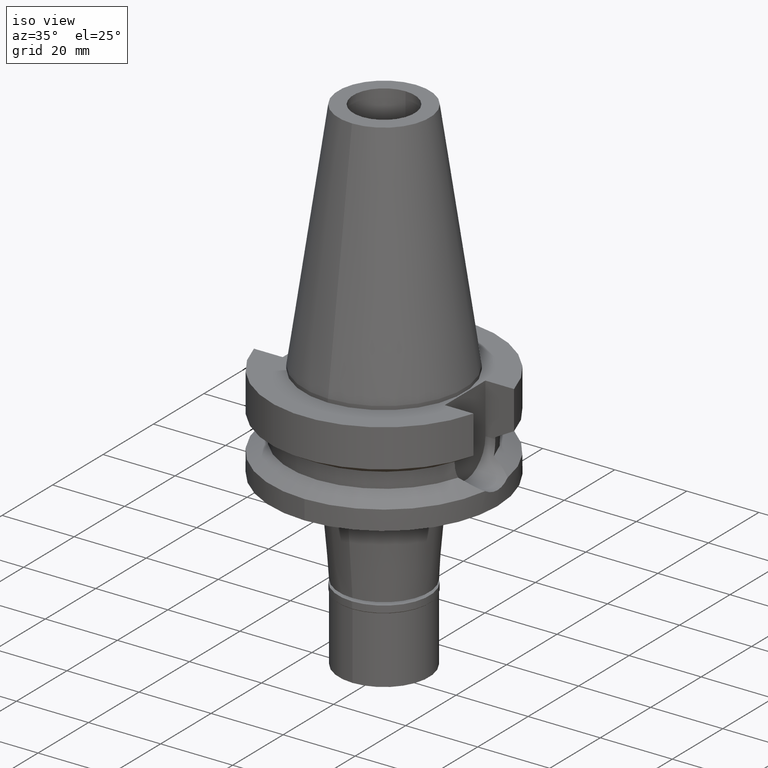
[diagram: clean part render]
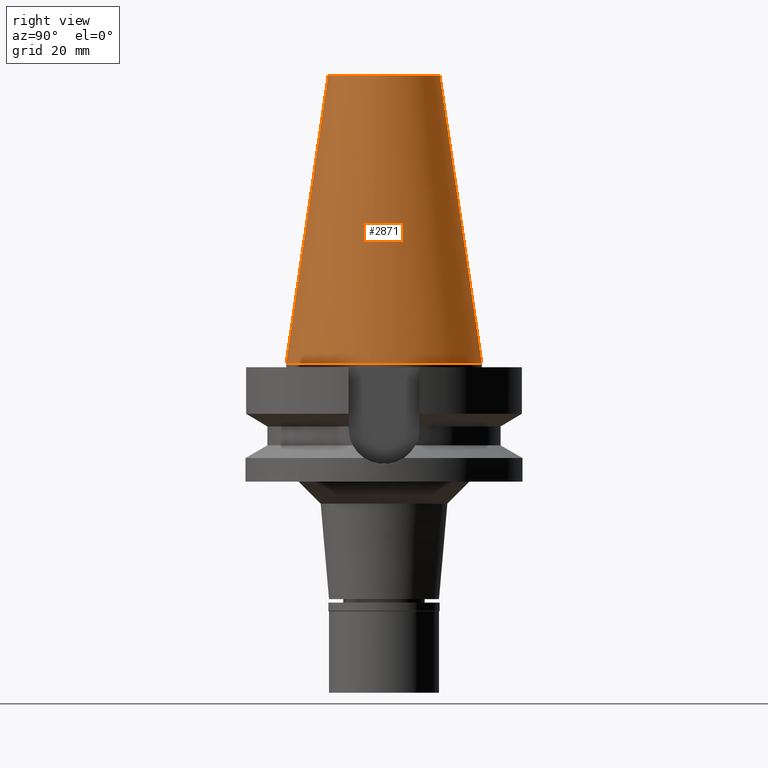
[diagram: tour spotlight — one face highlighted and labeled with its STEP entity id]
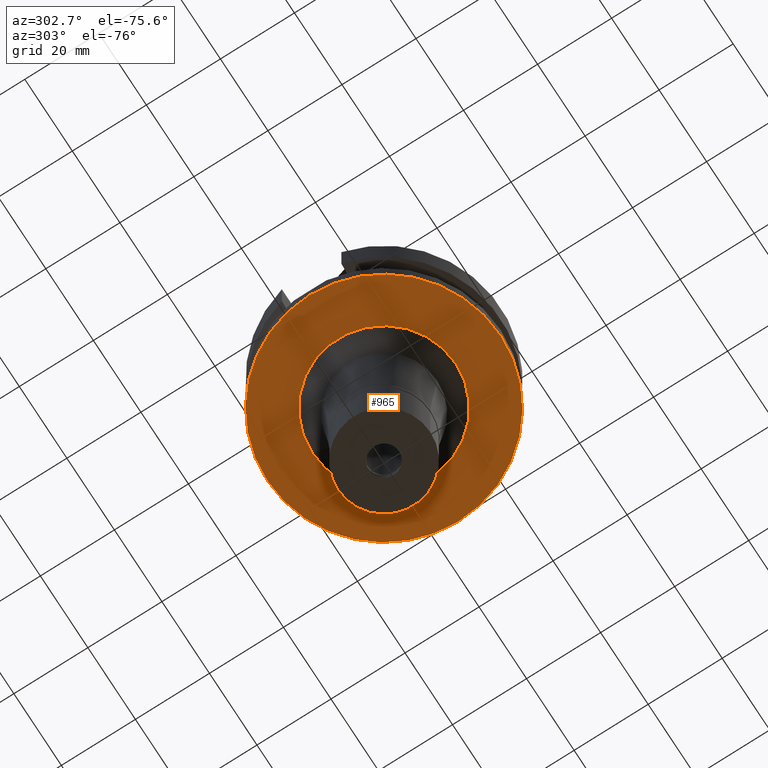
[diagram: tour spotlight — one face highlighted and labeled with its STEP entity id]
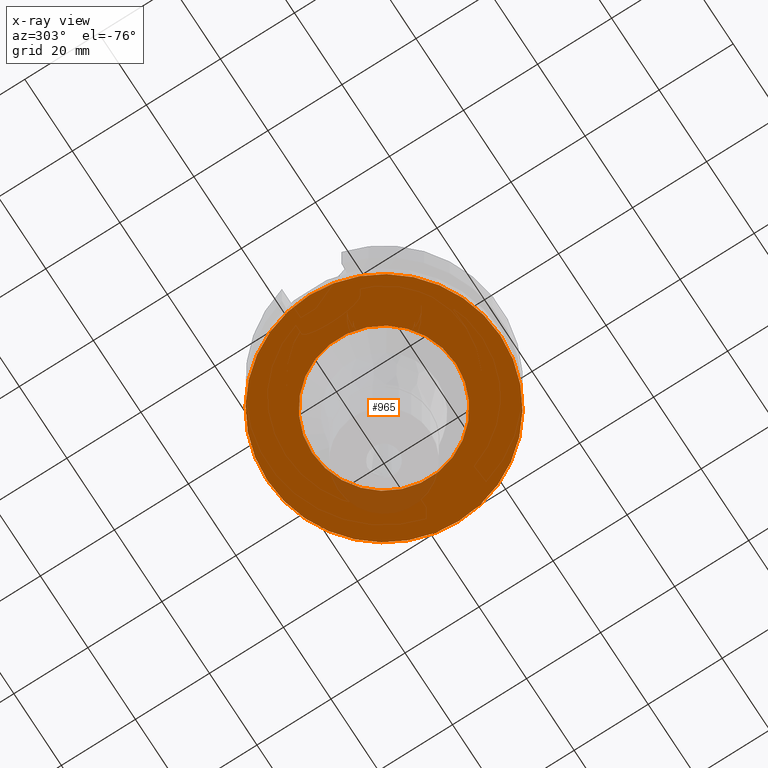
[diagram: x-ray of the same camera — body ghosted, this tour face saturated]
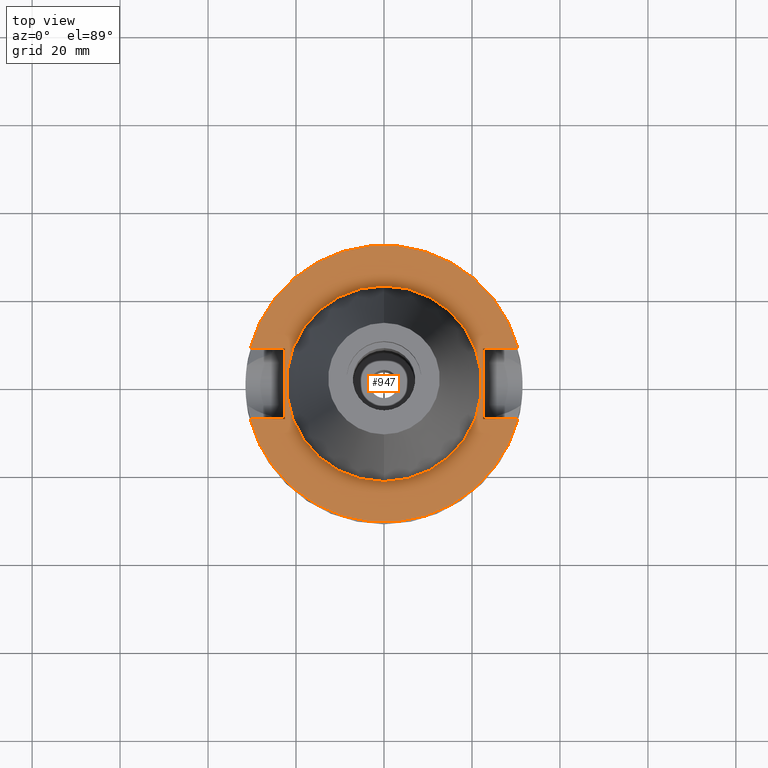
[diagram: tour spotlight — one face highlighted and labeled with its STEP entity id]
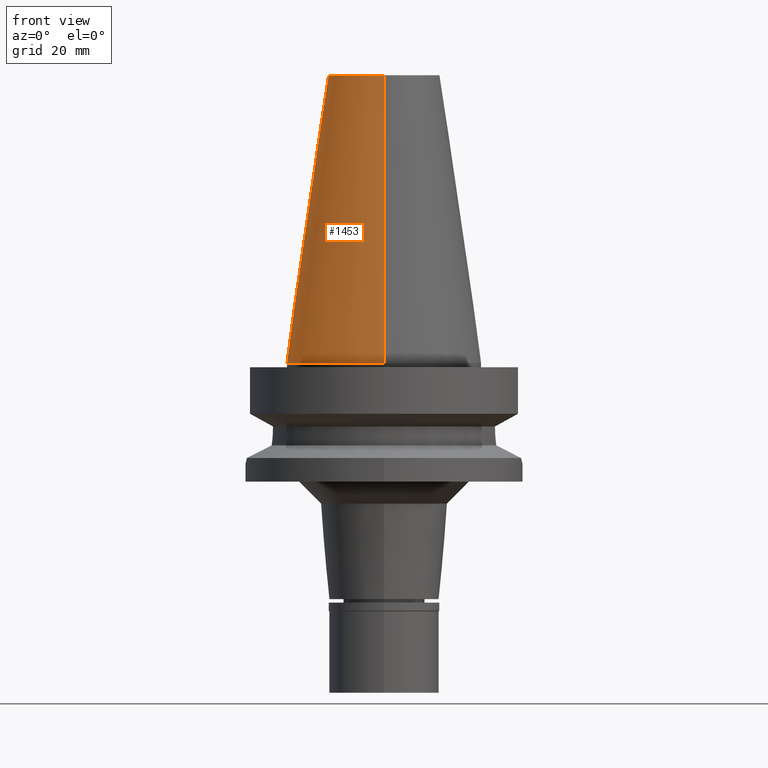
[diagram: tour spotlight — one face highlighted and labeled with its STEP entity id]
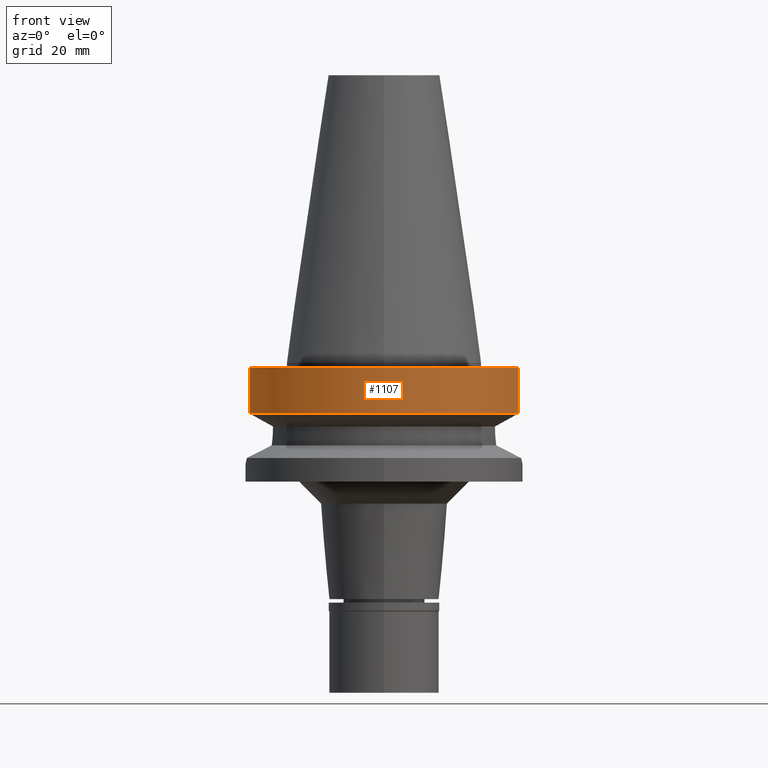
[diagram: tour spotlight — one face highlighted and labeled with its STEP entity id]
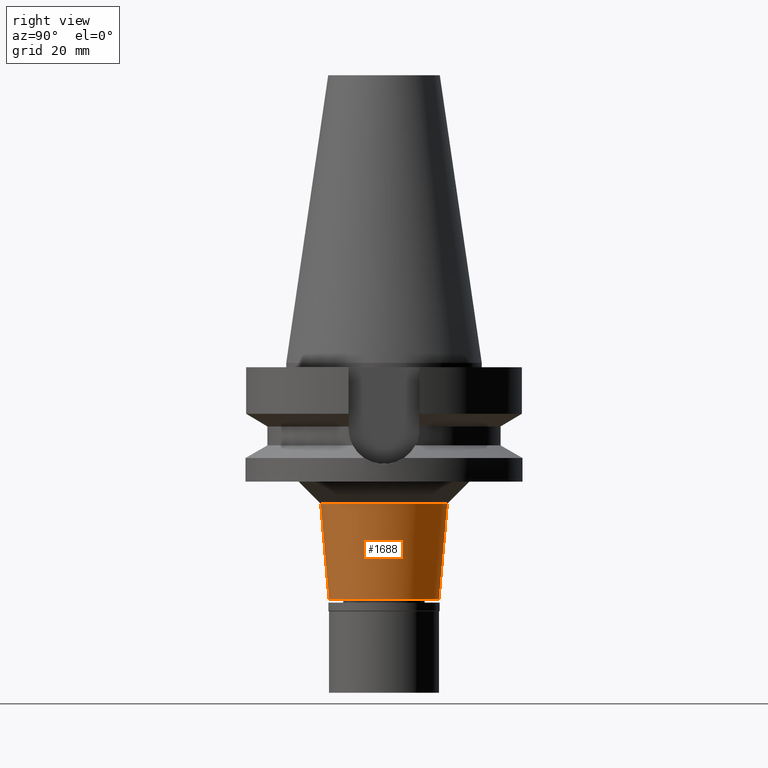
[diagram: tour spotlight — one face highlighted and labeled with its STEP entity id]
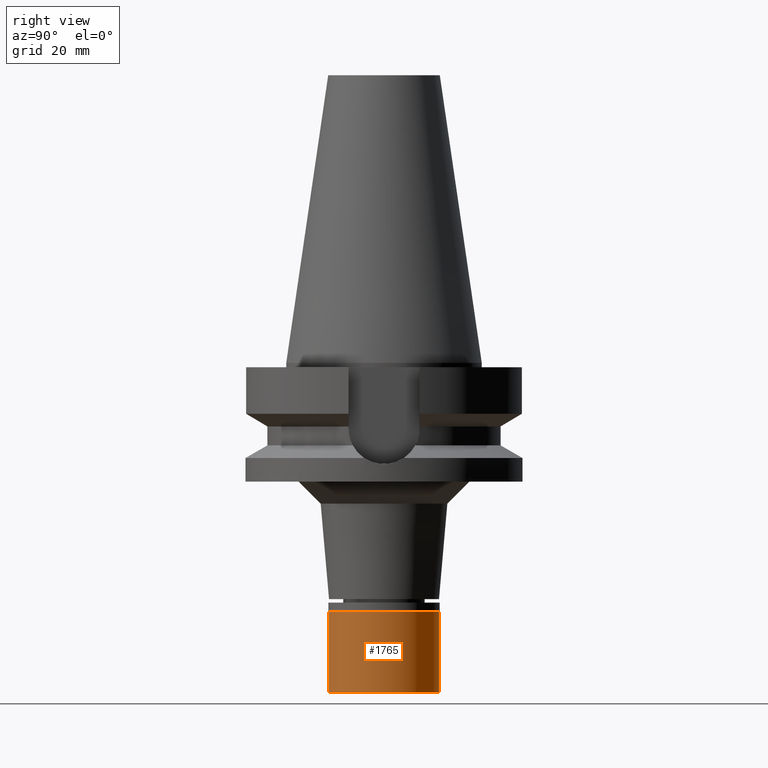
[diagram: tour spotlight — one face highlighted and labeled with its STEP entity id]
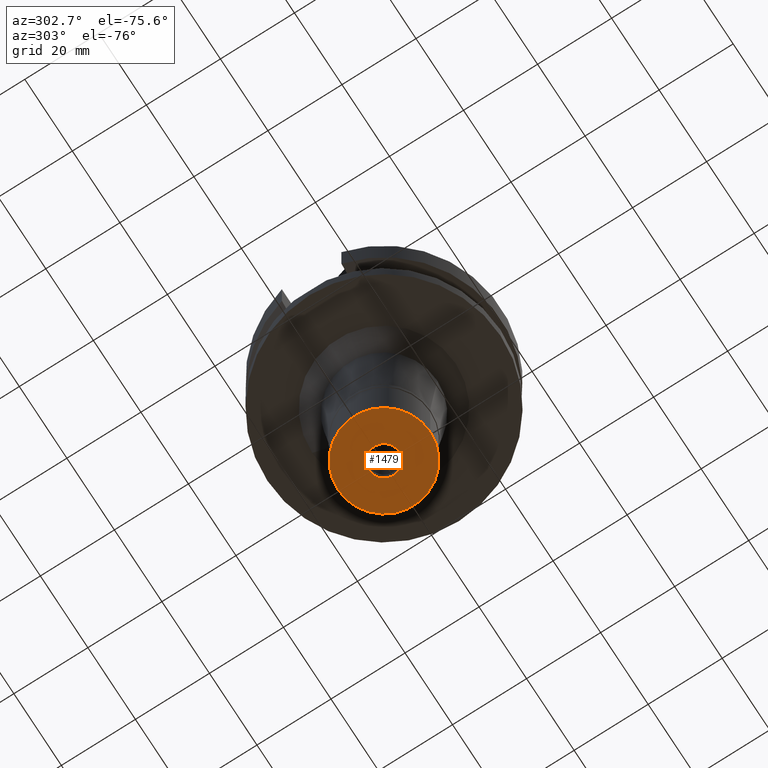
[diagram: tour spotlight — one face highlighted and labeled with its STEP entity id]
A machine part: a face-by-face anatomy tour. The part has 81 B-rep faces; the first image is the clean iso view, then the 8 largest visible faces are spotlighted one at a time (largest first), each with its STEP entity span.

Face 1 — right view, entity #2871. In plain terms, the highlighted conical surface has half-angle 8.297 deg.
Definition (entity closure, byte-faithful):
#51 = CARTESIAN_POINT ( 'NONE',  ( 0.0000000000000000000, -12.68766899429999917, 65.40000000000000568 ) ) ;
#188 = VECTOR ( 'NONE', #1435, 1000.000000000000114 ) ;
#195 = CARTESIAN_POINT ( 'NONE',  ( 0.0000000000000000000, -12.68766899429999917, 65.40000000000000568 ) ) ;
#227 = ORIENTED_EDGE ( 'NONE', *, *, #1899, .F. ) ;
#230 = DIRECTION ( 'NONE',  ( 0.0000000000000000000, -1.000000000000000000, 0.0000000000000000000 ) ) ;
#271 = ORIENTED_EDGE ( 'NONE', *, *, #2396, .F. ) ;
#439 = CIRCLE ( 'NONE', #2180, 22.22500000000000142 ) ;
#513 = LINE ( 'NONE', #1448, #188 ) ;
#527 = VECTOR ( 'NONE', #1674, 1000.000000000000114 ) ;
#541 = CARTESIAN_POINT ( 'NONE',  ( 0.0000000000000000000, 1.625106302469000024E-14, 2.842170943039999687E-14 ) ) ;
#606 = EDGE_CURVE ( 'NONE', #1371, #1858, #824, .T. ) ;
#666 = DIRECTION ( 'NONE',  ( 0.0000000000000000000, 0.0000000000000000000, -1.000000000000000000 ) ) ;
#733 = CIRCLE ( 'NONE', #1031, 12.68766899429999917 ) ;
#780 = VERTEX_POINT ( 'NONE', #2491 ) ;
#824 = LINE ( 'NONE', #195, #527 ) ;
#864 = ORIENTED_EDGE ( 'NONE', *, *, #606, .T. ) ;
#1031 = AXIS2_PLACEMENT_3D ( 'NONE', #1168, #666, #3107 ) ;
#1168 = CARTESIAN_POINT ( 'NONE',  ( 0.0000000000000000000, 1.625106302469000024E-14, 65.40000000000000568 ) ) ;
#1194 = ORIENTED_EDGE ( 'NONE', *, *, #2168, .T. ) ;
#1371 = VERTEX_POINT ( 'NONE', #51 ) ;
#1435 = DIRECTION ( 'NONE',  ( 0.0000000000000000000, 0.1443043893539925626, -0.9895333461855498891 ) ) ;
#1439 = DIRECTION ( 'NONE',  ( 0.0000000000000000000, 0.0000000000000000000, -1.000000000000000000 ) ) ;
#1448 = CARTESIAN_POINT ( 'NONE',  ( 0.0000000000000000000, 12.68766899429999917, 65.40000000000000568 ) ) ;
#1451 = CARTESIAN_POINT ( 'NONE',  ( 0.0000000000000000000, -22.22500000000000142, 8.526512829120999020E-14 ) ) ;
#1650 = FACE_OUTER_BOUND ( 'NONE', #2682, .T. ) ;
#1674 = DIRECTION ( 'NONE',  ( 0.0000000000000000000, -0.1443043893539925626, -0.9895333461855498891 ) ) ;
#1675 = DIRECTION ( 'NONE',  ( 0.0000000000000000000, 1.000000000000000000, 0.0000000000000000000 ) ) ;
#1858 = VERTEX_POINT ( 'NONE', #1451 ) ;
#1899 = EDGE_CURVE ( 'NONE', #2078, #1858, #439, .T. ) ;
#2078 = VERTEX_POINT ( 'NONE', #3017 ) ;
#2168 = EDGE_CURVE ( 'NONE', #780, #1371, #733, .T. ) ;
#2180 = AXIS2_PLACEMENT_3D ( 'NONE', #541, #1439, #1675 ) ;
#2188 = CONICAL_SURFACE ( 'NONE', #2453, 17.45633449714999941, 0.1448099680379422438 ) ;
#2396 = EDGE_CURVE ( 'NONE', #780, #2078, #513, .T. ) ;
#2420 = DIRECTION ( 'NONE',  ( 0.0000000000000000000, 0.0000000000000000000, -1.000000000000000000 ) ) ;
#2453 = AXIS2_PLACEMENT_3D ( 'NONE', #2633, #2420, #230 ) ;
#2491 = CARTESIAN_POINT ( 'NONE',  ( 0.0000000000000000000, 12.68766899429999917, 65.40000000000000568 ) ) ;
#2633 = CARTESIAN_POINT ( 'NONE',  ( 0.0000000000000000000, 1.625106302469000024E-14, 32.70000000000000284 ) ) ;
#2682 = EDGE_LOOP ( 'NONE', ( #1194, #864, #227, #271 ) ) ;
#2871 = ADVANCED_FACE ( 'NONE', ( #1650 ), #2188, .T. ) ;
#3017 = CARTESIAN_POINT ( 'NONE',  ( 0.0000000000000000000, 22.22500000000000142, 8.526512829120999020E-14 ) ) ;
#3107 = DIRECTION ( 'NONE',  ( 0.0000000000000000000, 1.000000000000000000, 0.0000000000000000000 ) ) ;

Face 2 — auxiliary view, entity #965. An x-ray twin of the same camera follows (body ghosted, this face saturated) — the face is partly hidden behind the body. In plain terms, the highlighted planar face has unit normal (0, 0, -1).
Definition (entity closure, byte-faithful):
#66 = EDGE_CURVE ( 'NONE', #664, #2153, #2385, .T. ) ;
#191 = FACE_BOUND ( 'NONE', #1846, .T. ) ;
#212 = DIRECTION ( 'NONE',  ( 0.0000000000000000000, -1.000000000000000000, 0.0000000000000000000 ) ) ;
#312 = DIRECTION ( 'NONE',  ( 0.0000000000000000000, 0.0000000000000000000, 1.000000000000000000 ) ) ;
#357 = EDGE_LOOP ( 'NONE', ( #3084, #533 ) ) ;
#418 = EDGE_CURVE ( 'NONE', #2153, #664, #1574, .T. ) ;
#437 = AXIS2_PLACEMENT_3D ( 'NONE', #1417, #941, #1391 ) ;
#456 = CARTESIAN_POINT ( 'NONE',  ( 0.0000000000000000000, 0.0000000000000000000, -27.00000000000000000 ) ) ;
#533 = ORIENTED_EDGE ( 'NONE', *, *, #757, .F. ) ;
#654 = CARTESIAN_POINT ( 'NONE',  ( 0.0000000000000000000, 19.39850399851000162, -27.00000000000000000 ) ) ;
#664 = VERTEX_POINT ( 'NONE', #928 ) ;
#687 = VERTEX_POINT ( 'NONE', #1185 ) ;
#751 = DIRECTION ( 'NONE',  ( 0.0000000000000000000, -1.000000000000000000, 0.0000000000000000000 ) ) ;
#757 = EDGE_CURVE ( 'NONE', #1876, #687, #886, .T. ) ;
#823 = CARTESIAN_POINT ( 'NONE',  ( 0.0000000000000000000, 0.0000000000000000000, -27.00000000000000000 ) ) ;
#886 = CIRCLE ( 'NONE', #3068, 31.50000000000000000 ) ;
#928 = CARTESIAN_POINT ( 'NONE',  ( 0.0000000000000000000, -19.39850399851000162, -27.00000000000000000 ) ) ;
#941 = DIRECTION ( 'NONE',  ( 0.0000000000000000000, 0.0000000000000000000, -1.000000000000000000 ) ) ;
#952 = CARTESIAN_POINT ( 'NONE',  ( 0.0000000000000000000, 2.107739606012999995E-14, -27.00000000000000000 ) ) ;
#965 = ADVANCED_FACE ( 'NONE', ( #1847, #191 ), #2864, .T. ) ;
#1070 = DIRECTION ( 'NONE',  ( 0.0000000000000000000, 1.000000000000000000, 0.0000000000000000000 ) ) ;
#1185 = CARTESIAN_POINT ( 'NONE',  ( 0.0000000000000000000, 31.50000000000000000, -27.00000000000000000 ) ) ;
#1391 = DIRECTION ( 'NONE',  ( 0.0000000000000000000, -1.000000000000000000, 0.0000000000000000000 ) ) ;
#1400 = DIRECTION ( 'NONE',  ( 0.0000000000000000000, 0.0000000000000000000, 1.000000000000000000 ) ) ;
#1417 = CARTESIAN_POINT ( 'NONE',  ( 0.0000000000000000000, 0.0000000000000000000, -27.00000000000000000 ) ) ;
#1537 = ORIENTED_EDGE ( 'NONE', *, *, #66, .F. ) ;
#1574 = CIRCLE ( 'NONE', #2852, 19.39850399851000162 ) ;
#1662 = DIRECTION ( 'NONE',  ( 0.0000000000000000000, 1.000000000000000000, 0.0000000000000000000 ) ) ;
#1818 = DIRECTION ( 'NONE',  ( 0.0000000000000000000, 0.0000000000000000000, -1.000000000000000000 ) ) ;
#1846 = EDGE_LOOP ( 'NONE', ( #2803, #1537 ) ) ;
#1847 = FACE_OUTER_BOUND ( 'NONE', #357, .T. ) ;
#1876 = VERTEX_POINT ( 'NONE', #2896 ) ;
#2040 = AXIS2_PLACEMENT_3D ( 'NONE', #952, #1400, #1662 ) ;
#2151 = DIRECTION ( 'NONE',  ( 0.0000000000000000000, 0.0000000000000000000, -1.000000000000000000 ) ) ;
#2153 = VERTEX_POINT ( 'NONE', #654 ) ;
#2385 = CIRCLE ( 'NONE', #3114, 19.39850399851000162 ) ;
#2803 = ORIENTED_EDGE ( 'NONE', *, *, #418, .F. ) ;
#2815 = EDGE_CURVE ( 'NONE', #687, #1876, #2917, .T. ) ;
#2852 = AXIS2_PLACEMENT_3D ( 'NONE', #823, #1818, #1070 ) ;
#2864 = PLANE ( 'NONE',  #437 ) ;
#2896 = CARTESIAN_POINT ( 'NONE',  ( 0.0000000000000000000, -31.50000000000000000, -27.00000000000000000 ) ) ;
#2917 = CIRCLE ( 'NONE', #2040, 31.50000000000000000 ) ;
#2927 = CARTESIAN_POINT ( 'NONE',  ( 0.0000000000000000000, 2.107739606012999995E-14, -27.00000000000000000 ) ) ;
#3068 = AXIS2_PLACEMENT_3D ( 'NONE', #2927, #312, #751 ) ;
#3084 = ORIENTED_EDGE ( 'NONE', *, *, #2815, .F. ) ;
#3114 = AXIS2_PLACEMENT_3D ( 'NONE', #456, #2151, #212 ) ;

Face 3 — top view, entity #947. In plain terms, the highlighted planar face has unit normal (0, 0, -1).
Definition (entity closure, byte-faithful):
#2 = EDGE_CURVE ( 'NONE', #1684, #2535, #2808, .T. ) ;
#23 = ORIENTED_EDGE ( 'NONE', *, *, #2336, .F. ) ;
#30 = CARTESIAN_POINT ( 'NONE',  ( 22.50000000000000000, -8.050000000000000711, -1.000000000000000000 ) ) ;
#52 = CARTESIAN_POINT ( 'NONE',  ( -22.50000000000000000, 8.050000000000000711, -1.000000000000000000 ) ) ;
#102 = CARTESIAN_POINT ( 'NONE',  ( -22.50000000000000000, -8.050000000000000711, -1.000000000000000000 ) ) ;
#124 = CARTESIAN_POINT ( 'NONE',  ( -30.45402272279000044, -8.050000000000000711, -1.000000000000000000 ) ) ;
#193 = DIRECTION ( 'NONE',  ( 1.000000000000000000, 3.573249715389999860E-14, 0.0000000000000000000 ) ) ;
#205 = ORIENTED_EDGE ( 'NONE', *, *, #1498, .F. ) ;
#206 = FACE_OUTER_BOUND ( 'NONE', #1370, .T. ) ;
#310 = EDGE_CURVE ( 'NONE', #2843, #3077, #2934, .T. ) ;
#363 = LINE ( 'NONE', #819, #2557 ) ;
#401 = EDGE_CURVE ( 'NONE', #1390, #1652, #2550, .T. ) ;
#460 = PLANE ( 'NONE',  #830 ) ;
#489 = CARTESIAN_POINT ( 'NONE',  ( 0.0000000000000000000, 1.212400331155999925E-14, -1.000000000000000000 ) ) ;
#501 = CARTESIAN_POINT ( 'NONE',  ( 0.0000000000000000000, 2.107739606012999995E-14, -1.000000000000000000 ) ) ;
#562 = ORIENTED_EDGE ( 'NONE', *, *, #310, .F. ) ;
#574 = DIRECTION ( 'NONE',  ( -1.000000000000000000, -3.550916904668000126E-14, 0.0000000000000000000 ) ) ;
#593 = VECTOR ( 'NONE', #1639, 1000.000000000000000 ) ;
#644 = ORIENTED_EDGE ( 'NONE', *, *, #2972, .T. ) ;
#676 = FACE_BOUND ( 'NONE', #1585, .T. ) ;
#689 = DIRECTION ( 'NONE',  ( 0.0000000000000000000, -1.000000000000000000, 0.0000000000000000000 ) ) ;
#729 = VECTOR ( 'NONE', #2761, 1000.000000000000000 ) ;
#752 = DIRECTION ( 'NONE',  ( 0.0000000000000000000, 0.0000000000000000000, -1.000000000000000000 ) ) ;
#797 = EDGE_CURVE ( 'NONE', #2535, #1684, #1472, .T. ) ;
#798 = ORIENTED_EDGE ( 'NONE', *, *, #797, .F. ) ;
#819 = CARTESIAN_POINT ( 'NONE',  ( 22.50000000000000000, 8.050000000000000711, -1.000000000000000000 ) ) ;
#825 = CARTESIAN_POINT ( 'NONE',  ( -30.45402272279000044, 8.050000000000000711, -1.000000000000000000 ) ) ;
#830 = AXIS2_PLACEMENT_3D ( 'NONE', #489, #2637, #689 ) ;
#847 = ORIENTED_EDGE ( 'NONE', *, *, #401, .T. ) ;
#904 = LINE ( 'NONE', #1849, #3023 ) ;
#919 = CARTESIAN_POINT ( 'NONE',  ( -22.50000000000000000, -8.050000000000000711, -1.000000000000000000 ) ) ;
#947 = ADVANCED_FACE ( 'NONE', ( #206, #676 ), #460, .F. ) ;
#1078 = CARTESIAN_POINT ( 'NONE',  ( 0.0000000000000000000, 22.22500000000000142, -1.000000000000000000 ) ) ;
#1087 = CIRCLE ( 'NONE', #2863, 31.50000000000000000 ) ;
#1191 = CARTESIAN_POINT ( 'NONE',  ( -22.50000000000000000, 8.050000000000000711, -1.000000000000000000 ) ) ;
#1219 = DIRECTION ( 'NONE',  ( 0.0000000000000000000, 0.0000000000000000000, -1.000000000000000000 ) ) ;
#1249 = CARTESIAN_POINT ( 'NONE',  ( 30.45402272279000044, 8.050000000000000711, -1.000000000000000000 ) ) ;
#1270 = AXIS2_PLACEMENT_3D ( 'NONE', #1333, #2545, #1312 ) ;
#1310 = ORIENTED_EDGE ( 'NONE', *, *, #1999, .F. ) ;
#1312 = DIRECTION ( 'NONE',  ( 0.0000000000000000000, 1.000000000000000000, 0.0000000000000000000 ) ) ;
#1322 = DIRECTION ( 'NONE',  ( 0.0000000000000000000, -1.000000000000000000, 0.0000000000000000000 ) ) ;
#1333 = CARTESIAN_POINT ( 'NONE',  ( 0.0000000000000000000, 2.107739606012999995E-14, -1.000000000000000000 ) ) ;
#1370 = EDGE_LOOP ( 'NONE', ( #644, #2322, #2124, #1310, #847, #23, #562, #205 ) ) ;
#1390 = VERTEX_POINT ( 'NONE', #1557 ) ;
#1472 = CIRCLE ( 'NONE', #1270, 22.22500000000000142 ) ;
#1483 = AXIS2_PLACEMENT_3D ( 'NONE', #501, #1219, #1894 ) ;
#1498 = EDGE_CURVE ( 'NONE', #1780, #2843, #2233, .T. ) ;
#1557 = CARTESIAN_POINT ( 'NONE',  ( 22.50000000000000000, 8.050000000000000711, -1.000000000000000000 ) ) ;
#1585 = EDGE_LOOP ( 'NONE', ( #798, #1774 ) ) ;
#1639 = DIRECTION ( 'NONE',  ( -1.000000000000000000, 3.550916904668000126E-14, 0.0000000000000000000 ) ) ;
#1652 = VERTEX_POINT ( 'NONE', #1249 ) ;
#1684 = VERTEX_POINT ( 'NONE', #2687 ) ;
#1696 = VERTEX_POINT ( 'NONE', #124 ) ;
#1720 = CARTESIAN_POINT ( 'NONE',  ( -22.50000000000000000, -8.050000000000000711, -1.000000000000000000 ) ) ;
#1738 = DIRECTION ( 'NONE',  ( 0.0000000000000000000, -1.000000000000000000, 0.0000000000000000000 ) ) ;
#1774 = ORIENTED_EDGE ( 'NONE', *, *, #2, .F. ) ;
#1780 = VERTEX_POINT ( 'NONE', #1720 ) ;
#1849 = CARTESIAN_POINT ( 'NONE',  ( 22.50000000000000000, -8.050000000000000711, -1.000000000000000000 ) ) ;
#1868 = VERTEX_POINT ( 'NONE', #30 ) ;
#1894 = DIRECTION ( 'NONE',  ( 0.0000000000000000000, 1.000000000000000000, 0.0000000000000000000 ) ) ;
#1902 = EDGE_CURVE ( 'NONE', #2906, #1696, #1087, .T. ) ;
#1922 = VECTOR ( 'NONE', #574, 1000.000000000000000 ) ;
#1944 = CARTESIAN_POINT ( 'NONE',  ( 0.0000000000000000000, 2.107739606012999995E-14, -1.000000000000000000 ) ) ;
#1999 = EDGE_CURVE ( 'NONE', #1390, #1868, #363, .T. ) ;
#2023 = VECTOR ( 'NONE', #2310, 1000.000000000000000 ) ;
#2124 = ORIENTED_EDGE ( 'NONE', *, *, #2148, .F. ) ;
#2148 = EDGE_CURVE ( 'NONE', #1868, #2906, #904, .T. ) ;
#2233 = LINE ( 'NONE', #102, #729 ) ;
#2310 = DIRECTION ( 'NONE',  ( 1.000000000000000000, -3.506251283225999947E-14, 0.0000000000000000000 ) ) ;
#2322 = ORIENTED_EDGE ( 'NONE', *, *, #1902, .F. ) ;
#2336 = EDGE_CURVE ( 'NONE', #3077, #1652, #2865, .T. ) ;
#2535 = VERTEX_POINT ( 'NONE', #1078 ) ;
#2545 = DIRECTION ( 'NONE',  ( 0.0000000000000000000, 0.0000000000000000000, 1.000000000000000000 ) ) ;
#2550 = LINE ( 'NONE', #2792, #2023 ) ;
#2557 = VECTOR ( 'NONE', #1738, 1000.000000000000000 ) ;
#2623 = CARTESIAN_POINT ( 'NONE',  ( 30.45402272279000044, -8.050000000000000711, -1.000000000000000000 ) ) ;
#2637 = DIRECTION ( 'NONE',  ( 0.0000000000000000000, 0.0000000000000000000, -1.000000000000000000 ) ) ;
#2646 = AXIS2_PLACEMENT_3D ( 'NONE', #3026, #2766, #1322 ) ;
#2687 = CARTESIAN_POINT ( 'NONE',  ( 0.0000000000000000000, -22.22500000000000142, -1.000000000000000000 ) ) ;
#2761 = DIRECTION ( 'NONE',  ( 0.0000000000000000000, 1.000000000000000000, 0.0000000000000000000 ) ) ;
#2766 = DIRECTION ( 'NONE',  ( 0.0000000000000000000, 0.0000000000000000000, 1.000000000000000000 ) ) ;
#2792 = CARTESIAN_POINT ( 'NONE',  ( 22.50000000000000000, 8.050000000000000711, -1.000000000000000000 ) ) ;
#2808 = CIRCLE ( 'NONE', #2646, 22.22500000000000142 ) ;
#2843 = VERTEX_POINT ( 'NONE', #1191 ) ;
#2863 = AXIS2_PLACEMENT_3D ( 'NONE', #1944, #752, #2882 ) ;
#2865 = CIRCLE ( 'NONE', #1483, 31.50000000000000000 ) ;
#2882 = DIRECTION ( 'NONE',  ( 0.0000000000000000000, -1.000000000000000000, 0.0000000000000000000 ) ) ;
#2906 = VERTEX_POINT ( 'NONE', #2623 ) ;
#2934 = LINE ( 'NONE', #52, #1922 ) ;
#2972 = EDGE_CURVE ( 'NONE', #1780, #1696, #3100, .T. ) ;
#3023 = VECTOR ( 'NONE', #193, 1000.000000000000000 ) ;
#3026 = CARTESIAN_POINT ( 'NONE',  ( 0.0000000000000000000, 2.107739606012999995E-14, -1.000000000000000000 ) ) ;
#3077 = VERTEX_POINT ( 'NONE', #825 ) ;
#3100 = LINE ( 'NONE', #919, #593 ) ;

Face 4 — front view, entity #1453. In plain terms, the highlighted conical surface has half-angle 8.297 deg.
Definition (entity closure, byte-faithful):
#51 = CARTESIAN_POINT ( 'NONE',  ( 0.0000000000000000000, -12.68766899429999917, 65.40000000000000568 ) ) ;
#188 = VECTOR ( 'NONE', #1435, 1000.000000000000114 ) ;
#195 = CARTESIAN_POINT ( 'NONE',  ( 0.0000000000000000000, -12.68766899429999917, 65.40000000000000568 ) ) ;
#266 = AXIS2_PLACEMENT_3D ( 'NONE', #2678, #1269, #2198 ) ;
#291 = EDGE_CURVE ( 'NONE', #1858, #2078, #1133, .T. ) ;
#300 = DIRECTION ( 'NONE',  ( 0.0000000000000000000, -1.000000000000000000, 0.0000000000000000000 ) ) ;
#370 = ORIENTED_EDGE ( 'NONE', *, *, #291, .F. ) ;
#392 = EDGE_CURVE ( 'NONE', #1371, #780, #477, .T. ) ;
#477 = CIRCLE ( 'NONE', #266, 12.68766899429999917 ) ;
#509 = DIRECTION ( 'NONE',  ( 0.0000000000000000000, 0.0000000000000000000, -1.000000000000000000 ) ) ;
#513 = LINE ( 'NONE', #1448, #188 ) ;
#527 = VECTOR ( 'NONE', #1674, 1000.000000000000114 ) ;
#606 = EDGE_CURVE ( 'NONE', #1371, #1858, #824, .T. ) ;
#780 = VERTEX_POINT ( 'NONE', #2491 ) ;
#803 = ORIENTED_EDGE ( 'NONE', *, *, #606, .F. ) ;
#824 = LINE ( 'NONE', #195, #527 ) ;
#932 = AXIS2_PLACEMENT_3D ( 'NONE', #2970, #2009, #300 ) ;
#992 = CARTESIAN_POINT ( 'NONE',  ( 0.0000000000000000000, 1.625106302469000024E-14, 2.842170943039999687E-14 ) ) ;
#1004 = FACE_OUTER_BOUND ( 'NONE', #2572, .T. ) ;
#1021 = DIRECTION ( 'NONE',  ( 0.0000000000000000000, -1.000000000000000000, 0.0000000000000000000 ) ) ;
#1133 = CIRCLE ( 'NONE', #1670, 22.22500000000000142 ) ;
#1231 = ORIENTED_EDGE ( 'NONE', *, *, #2396, .T. ) ;
#1269 = DIRECTION ( 'NONE',  ( 0.0000000000000000000, 0.0000000000000000000, -1.000000000000000000 ) ) ;
#1371 = VERTEX_POINT ( 'NONE', #51 ) ;
#1435 = DIRECTION ( 'NONE',  ( 0.0000000000000000000, 0.1443043893539925626, -0.9895333461855498891 ) ) ;
#1448 = CARTESIAN_POINT ( 'NONE',  ( 0.0000000000000000000, 12.68766899429999917, 65.40000000000000568 ) ) ;
#1451 = CARTESIAN_POINT ( 'NONE',  ( 0.0000000000000000000, -22.22500000000000142, 8.526512829120999020E-14 ) ) ;
#1453 = ADVANCED_FACE ( 'NONE', ( #1004 ), #2344, .T. ) ;
#1670 = AXIS2_PLACEMENT_3D ( 'NONE', #992, #509, #1021 ) ;
#1674 = DIRECTION ( 'NONE',  ( 0.0000000000000000000, -0.1443043893539925626, -0.9895333461855498891 ) ) ;
#1858 = VERTEX_POINT ( 'NONE', #1451 ) ;
#2009 = DIRECTION ( 'NONE',  ( 0.0000000000000000000, 0.0000000000000000000, -1.000000000000000000 ) ) ;
#2078 = VERTEX_POINT ( 'NONE', #3017 ) ;
#2198 = DIRECTION ( 'NONE',  ( 0.0000000000000000000, -1.000000000000000000, 0.0000000000000000000 ) ) ;
#2255 = ORIENTED_EDGE ( 'NONE', *, *, #392, .T. ) ;
#2344 = CONICAL_SURFACE ( 'NONE', #932, 17.45633449714999941, 0.1448099680379422438 ) ;
#2396 = EDGE_CURVE ( 'NONE', #780, #2078, #513, .T. ) ;
#2491 = CARTESIAN_POINT ( 'NONE',  ( 0.0000000000000000000, 12.68766899429999917, 65.40000000000000568 ) ) ;
#2572 = EDGE_LOOP ( 'NONE', ( #370, #803, #2255, #1231 ) ) ;
#2678 = CARTESIAN_POINT ( 'NONE',  ( 0.0000000000000000000, 1.625106302469000024E-14, 65.40000000000000568 ) ) ;
#2970 = CARTESIAN_POINT ( 'NONE',  ( 0.0000000000000000000, 1.625106302469000024E-14, 32.70000000000000284 ) ) ;
#3017 = CARTESIAN_POINT ( 'NONE',  ( 0.0000000000000000000, 22.22500000000000142, 8.526512829120999020E-14 ) ) ;

Face 5 — front view, entity #1107. In plain terms, the highlighted cylindrical surface (partial cylindrical patch) has radius 31.5 mm, axis along (0, 0, -1).
Definition (entity closure, byte-faithful):
#124 = CARTESIAN_POINT ( 'NONE',  ( -30.45402272279000044, -8.050000000000000711, -1.000000000000000000 ) ) ;
#169 = LINE ( 'NONE', #1100, #1782 ) ;
#214 = CARTESIAN_POINT ( 'NONE',  ( 0.0000000000000000000, 2.107739606012999995E-14, 72.10999999999999943 ) ) ;
#645 = VERTEX_POINT ( 'NONE', #739 ) ;
#739 = CARTESIAN_POINT ( 'NONE',  ( 30.45402272279000044, -8.049999999999000622, -11.56550565266999975 ) ) ;
#752 = DIRECTION ( 'NONE',  ( 0.0000000000000000000, 0.0000000000000000000, -1.000000000000000000 ) ) ;
#835 = AXIS2_PLACEMENT_3D ( 'NONE', #214, #1151, #2860 ) ;
#1063 = ORIENTED_EDGE ( 'NONE', *, *, #1902, .T. ) ;
#1087 = CIRCLE ( 'NONE', #2863, 31.50000000000000000 ) ;
#1093 = CARTESIAN_POINT ( 'NONE',  ( -30.45402291521000038, -8.049999272052000165, -11.56551220913999956 ) ) ;
#1100 = CARTESIAN_POINT ( 'NONE',  ( -30.45402291521000038, -8.049999272052000165, -11.56551220913999956 ) ) ;
#1107 = ADVANCED_FACE ( 'NONE', ( #1369 ), #2634, .T. ) ;
#1151 = DIRECTION ( 'NONE',  ( 0.0000000000000000000, 0.0000000000000000000, -1.000000000000000000 ) ) ;
#1174 = CARTESIAN_POINT ( 'NONE',  ( 0.0000000000000000000, 1.065333950388000029E-14, -11.56550565266999975 ) ) ;
#1250 = CARTESIAN_POINT ( 'NONE',  ( 30.45402272279000044, -8.050000000000000711, -1.000000000000000000 ) ) ;
#1285 = CIRCLE ( 'NONE', #1638, 31.50000000000000000 ) ;
#1292 = ORIENTED_EDGE ( 'NONE', *, *, #1454, .F. ) ;
#1369 = FACE_OUTER_BOUND ( 'NONE', #2291, .T. ) ;
#1454 = EDGE_CURVE ( 'NONE', #2906, #645, #2250, .T. ) ;
#1458 = DIRECTION ( 'NONE',  ( 0.0000000000000000000, -1.000000000000000000, 0.0000000000000000000 ) ) ;
#1532 = VERTEX_POINT ( 'NONE', #1093 ) ;
#1567 = ORIENTED_EDGE ( 'NONE', *, *, #2735, .F. ) ;
#1638 = AXIS2_PLACEMENT_3D ( 'NONE', #1174, #2122, #1458 ) ;
#1696 = VERTEX_POINT ( 'NONE', #124 ) ;
#1782 = VECTOR ( 'NONE', #1856, 1000.000000000000227 ) ;
#1856 = DIRECTION ( 'NONE',  ( 1.821207597955990282E-08, -6.889849435559961622E-08, 0.9999999999999973355 ) ) ;
#1902 = EDGE_CURVE ( 'NONE', #2906, #1696, #1087, .T. ) ;
#1944 = CARTESIAN_POINT ( 'NONE',  ( 0.0000000000000000000, 2.107739606012999995E-14, -1.000000000000000000 ) ) ;
#1962 = DIRECTION ( 'NONE',  ( -1.039900106137018301E-07, -3.934049467896066121E-07, -0.9999999999999172884 ) ) ;
#2082 = ORIENTED_EDGE ( 'NONE', *, *, #2910, .T. ) ;
#2122 = DIRECTION ( 'NONE',  ( 0.0000000000000000000, 0.0000000000000000000, 1.000000000000000000 ) ) ;
#2250 = LINE ( 'NONE', #1250, #2760 ) ;
#2291 = EDGE_LOOP ( 'NONE', ( #1567, #2082, #1292, #1063 ) ) ;
#2623 = CARTESIAN_POINT ( 'NONE',  ( 30.45402272279000044, -8.050000000000000711, -1.000000000000000000 ) ) ;
#2634 = CYLINDRICAL_SURFACE ( 'NONE', #835, 31.50000000000000000 ) ;
#2735 = EDGE_CURVE ( 'NONE', #1532, #1696, #169, .T. ) ;
#2760 = VECTOR ( 'NONE', #1962, 1000.000000000000000 ) ;
#2860 = DIRECTION ( 'NONE',  ( 0.0000000000000000000, -1.000000000000000000, 0.0000000000000000000 ) ) ;
#2863 = AXIS2_PLACEMENT_3D ( 'NONE', #1944, #752, #2882 ) ;
#2882 = DIRECTION ( 'NONE',  ( 0.0000000000000000000, -1.000000000000000000, 0.0000000000000000000 ) ) ;
#2906 = VERTEX_POINT ( 'NONE', #2623 ) ;
#2910 = EDGE_CURVE ( 'NONE', #1532, #645, #1285, .T. ) ;

Face 6 — right view, entity #1688. In plain terms, the highlighted conical surface has half-angle 5 deg.
Definition (entity closure, byte-faithful):
#207 = CARTESIAN_POINT ( 'NONE',  ( 0.0000000000000000000, -14.39850399850999985, -32.00000000000000000 ) ) ;
#223 = CARTESIAN_POINT ( 'NONE',  ( 0.0000000000000000000, -12.50000000000000000, -53.69999999999999574 ) ) ;
#329 = VECTOR ( 'NONE', #2904, 1000.000000000000000 ) ;
#404 = DIRECTION ( 'NONE',  ( 0.0000000000000000000, 0.0000000000000000000, 1.000000000000000000 ) ) ;
#438 = EDGE_CURVE ( 'NONE', #660, #659, #2026, .T. ) ;
#483 = AXIS2_PLACEMENT_3D ( 'NONE', #517, #1945, #1468 ) ;
#517 = CARTESIAN_POINT ( 'NONE',  ( 0.0000000000000000000, 0.0000000000000000000, -42.85000000000000142 ) ) ;
#556 = FACE_OUTER_BOUND ( 'NONE', #2038, .T. ) ;
#659 = VERTEX_POINT ( 'NONE', #1394 ) ;
#660 = VERTEX_POINT ( 'NONE', #2366 ) ;
#669 = VERTEX_POINT ( 'NONE', #223 ) ;
#775 = DIRECTION ( 'NONE',  ( 0.0000000000000000000, -1.000000000000000000, 0.0000000000000000000 ) ) ;
#883 = ORIENTED_EDGE ( 'NONE', *, *, #2276, .T. ) ;
#1040 = DIRECTION ( 'NONE',  ( 0.0000000000000000000, 0.0000000000000000000, 1.000000000000000000 ) ) ;
#1129 = VERTEX_POINT ( 'NONE', #2360 ) ;
#1145 = EDGE_CURVE ( 'NONE', #659, #1129, #2954, .T. ) ;
#1230 = ORIENTED_EDGE ( 'NONE', *, *, #1348, .T. ) ;
#1320 = AXIS2_PLACEMENT_3D ( 'NONE', #1839, #404, #2047 ) ;
#1348 = EDGE_CURVE ( 'NONE', #669, #1129, #1881, .T. ) ;
#1394 = CARTESIAN_POINT ( 'NONE',  ( 0.0000000000000000000, 14.39850399850999985, -32.00000000000000000 ) ) ;
#1468 = DIRECTION ( 'NONE',  ( 0.0000000000000000000, 1.000000000000000000, 0.0000000000000000000 ) ) ;
#1548 = ORIENTED_EDGE ( 'NONE', *, *, #1145, .F. ) ;
#1648 = CARTESIAN_POINT ( 'NONE',  ( 0.0000000000000000000, 0.0000000000000000000, -53.69999999999999574 ) ) ;
#1688 = ADVANCED_FACE ( 'NONE', ( #556 ), #2553, .T. ) ;
#1814 = DIRECTION ( 'NONE',  ( 0.0000000000000000000, 0.08715574274756596185, -0.9961946980917535388 ) ) ;
#1839 = CARTESIAN_POINT ( 'NONE',  ( 0.0000000000000000000, 0.0000000000000000000, -32.00000000000000000 ) ) ;
#1881 = CIRCLE ( 'NONE', #2811, 12.50000000000000000 ) ;
#1905 = CARTESIAN_POINT ( 'NONE',  ( 0.0000000000000000000, 14.39850399850999985, -32.00000000000000000 ) ) ;
#1945 = DIRECTION ( 'NONE',  ( 0.0000000000000000000, 0.0000000000000000000, 1.000000000000000000 ) ) ;
#2026 = CIRCLE ( 'NONE', #1320, 14.39850399852000074 ) ;
#2038 = EDGE_LOOP ( 'NONE', ( #2154, #883, #1230, #1548 ) ) ;
#2047 = DIRECTION ( 'NONE',  ( 0.0000000000000000000, -1.000000000000000000, 0.0000000000000000000 ) ) ;
#2154 = ORIENTED_EDGE ( 'NONE', *, *, #438, .F. ) ;
#2276 = EDGE_CURVE ( 'NONE', #660, #669, #3064, .T. ) ;
#2360 = CARTESIAN_POINT ( 'NONE',  ( 0.0000000000000000000, 12.50000000000000000, -53.69999999999999574 ) ) ;
#2366 = CARTESIAN_POINT ( 'NONE',  ( 0.0000000000000000000, -14.39850399850999985, -32.00000000000000000 ) ) ;
#2553 = CONICAL_SURFACE ( 'NONE', #483, 13.44925199925999948, 0.08726646259969973729 ) ;
#2811 = AXIS2_PLACEMENT_3D ( 'NONE', #1648, #1040, #775 ) ;
#2904 = DIRECTION ( 'NONE',  ( 0.0000000000000000000, -0.08715574274756596185, -0.9961946980917535388 ) ) ;
#2954 = LINE ( 'NONE', #1905, #329 ) ;
#3064 = LINE ( 'NONE', #207, #3123 ) ;
#3123 = VECTOR ( 'NONE', #1814, 1000.000000000000000 ) ;

Face 7 — right view, entity #1765. In plain terms, the highlighted cylindrical surface (partial cylindrical patch) has radius 12.5 mm, axis along (0, 0, -1).
Definition (entity closure, byte-faithful):
#54 = ORIENTED_EDGE ( 'NONE', *, *, #2758, .T. ) ;
#257 = VERTEX_POINT ( 'NONE', #809 ) ;
#431 = FACE_OUTER_BOUND ( 'NONE', #2787, .T. ) ;
#457 = DIRECTION ( 'NONE',  ( 0.0000000000000000000, 1.000000000000000000, 0.0000000000000000000 ) ) ;
#540 = CARTESIAN_POINT ( 'NONE',  ( 0.0000000000000000000, 12.50000000000000000, -2.000000000000000000 ) ) ;
#577 = VERTEX_POINT ( 'NONE', #707 ) ;
#599 = VERTEX_POINT ( 'NONE', #1689 ) ;
#611 = CARTESIAN_POINT ( 'NONE',  ( 0.0000000000000000000, -12.50000000000000000, -2.000000000000000000 ) ) ;
#649 = CARTESIAN_POINT ( 'NONE',  ( 0.0000000000000000000, 0.0000000000000000000, -2.000000000000000000 ) ) ;
#707 = CARTESIAN_POINT ( 'NONE',  ( 0.0000000000000000000, -12.50000000000000000, -2.000000000000000000 ) ) ;
#772 = EDGE_CURVE ( 'NONE', #3137, #599, #1699, .T. ) ;
#787 = DIRECTION ( 'NONE',  ( 0.0000000000000000000, 0.0000000000000000000, -1.000000000000000000 ) ) ;
#809 = CARTESIAN_POINT ( 'NONE',  ( 0.0000000000000000000, -12.50000000000000000, -20.50000000000000000 ) ) ;
#817 = ORIENTED_EDGE ( 'NONE', *, *, #2791, .T. ) ;
#999 = EDGE_CURVE ( 'NONE', #257, #599, #1186, .T. ) ;
#1114 = LINE ( 'NONE', #611, #2563 ) ;
#1138 = VECTOR ( 'NONE', #787, 1000.000000000000000 ) ;
#1144 = AXIS2_PLACEMENT_3D ( 'NONE', #649, #1596, #457 ) ;
#1166 = CARTESIAN_POINT ( 'NONE',  ( 0.0000000000000000000, 0.0000000000000000000, 0.0000000000000000000 ) ) ;
#1186 = CIRCLE ( 'NONE', #1772, 12.50000000000000000 ) ;
#1381 = DIRECTION ( 'NONE',  ( 0.0000000000000000000, 0.0000000000000000000, -1.000000000000000000 ) ) ;
#1384 = ORIENTED_EDGE ( 'NONE', *, *, #772, .F. ) ;
#1596 = DIRECTION ( 'NONE',  ( 0.0000000000000000000, 0.0000000000000000000, -1.000000000000000000 ) ) ;
#1636 = DIRECTION ( 'NONE',  ( 0.0000000000000000000, -1.000000000000000000, 0.0000000000000000000 ) ) ;
#1689 = CARTESIAN_POINT ( 'NONE',  ( 0.0000000000000000000, 12.50000000000000000, -20.50000000000000000 ) ) ;
#1699 = LINE ( 'NONE', #540, #1138 ) ;
#1765 = ADVANCED_FACE ( 'NONE', ( #431 ), #1893, .T. ) ;
#1772 = AXIS2_PLACEMENT_3D ( 'NONE', #1908, #2890, #2409 ) ;
#1893 = CYLINDRICAL_SURFACE ( 'NONE', #2447, 12.50000000000000000 ) ;
#1908 = CARTESIAN_POINT ( 'NONE',  ( 0.0000000000000000000, 0.0000000000000000000, -20.50000000000000000 ) ) ;
#2314 = DIRECTION ( 'NONE',  ( 0.0000000000000000000, 0.0000000000000000000, -1.000000000000000000 ) ) ;
#2409 = DIRECTION ( 'NONE',  ( 0.0000000000000000000, -1.000000000000000000, 0.0000000000000000000 ) ) ;
#2447 = AXIS2_PLACEMENT_3D ( 'NONE', #1166, #1381, #1636 ) ;
#2506 = CIRCLE ( 'NONE', #1144, 12.50000000000000000 ) ;
#2563 = VECTOR ( 'NONE', #2314, 1000.000000000000000 ) ;
#2565 = ORIENTED_EDGE ( 'NONE', *, *, #999, .T. ) ;
#2758 = EDGE_CURVE ( 'NONE', #577, #257, #1114, .T. ) ;
#2787 = EDGE_LOOP ( 'NONE', ( #817, #54, #2565, #1384 ) ) ;
#2791 = EDGE_CURVE ( 'NONE', #3137, #577, #2506, .T. ) ;
#2890 = DIRECTION ( 'NONE',  ( 0.0000000000000000000, 0.0000000000000000000, 1.000000000000000000 ) ) ;
#2976 = CARTESIAN_POINT ( 'NONE',  ( 0.0000000000000000000, 12.50000000000000000, -2.000000000000000000 ) ) ;
#3137 = VERTEX_POINT ( 'NONE', #2976 ) ;

Face 8 — auxiliary view, entity #1479. In plain terms, the highlighted planar face has unit normal (0, 0, -1).
Definition (entity closure, byte-faithful):
#33 = CIRCLE ( 'NONE', #1233, 12.50000000000000000 ) ;
#69 = DIRECTION ( 'NONE',  ( 0.0000000000000000000, -1.000000000000000000, 0.0000000000000000000 ) ) ;
#154 = EDGE_CURVE ( 'NONE', #1339, #3103, #923, .T. ) ;
#202 = DIRECTION ( 'NONE',  ( 0.0000000000000000000, 0.0000000000000000000, 1.000000000000000000 ) ) ;
#257 = VERTEX_POINT ( 'NONE', #809 ) ;
#328 = EDGE_LOOP ( 'NONE', ( #1343, #1447 ) ) ;
#393 = DIRECTION ( 'NONE',  ( 0.0000000000000000000, 1.000000000000000000, 0.0000000000000000000 ) ) ;
#445 = ORIENTED_EDGE ( 'NONE', *, *, #3052, .F. ) ;
#481 = ORIENTED_EDGE ( 'NONE', *, *, #154, .F. ) ;
#494 = CIRCLE ( 'NONE', #741, 4.050000000000999911 ) ;
#599 = VERTEX_POINT ( 'NONE', #1689 ) ;
#629 = AXIS2_PLACEMENT_3D ( 'NONE', #2899, #2664, #1679 ) ;
#695 = CARTESIAN_POINT ( 'NONE',  ( 0.0000000000000000000, -4.050000000000999911, -20.50000000000000000 ) ) ;
#741 = AXIS2_PLACEMENT_3D ( 'NONE', #1252, #2694, #1709 ) ;
#809 = CARTESIAN_POINT ( 'NONE',  ( 0.0000000000000000000, -12.50000000000000000, -20.50000000000000000 ) ) ;
#923 = CIRCLE ( 'NONE', #629, 4.050000000000999911 ) ;
#999 = EDGE_CURVE ( 'NONE', #257, #599, #1186, .T. ) ;
#1069 = FACE_BOUND ( 'NONE', #2466, .T. ) ;
#1186 = CIRCLE ( 'NONE', #1772, 12.50000000000000000 ) ;
#1233 = AXIS2_PLACEMENT_3D ( 'NONE', #2560, #202, #393 ) ;
#1252 = CARTESIAN_POINT ( 'NONE',  ( 0.0000000000000000000, 0.0000000000000000000, -20.50000000000000000 ) ) ;
#1339 = VERTEX_POINT ( 'NONE', #695 ) ;
#1343 = ORIENTED_EDGE ( 'NONE', *, *, #2713, .F. ) ;
#1447 = ORIENTED_EDGE ( 'NONE', *, *, #999, .F. ) ;
#1479 = ADVANCED_FACE ( 'NONE', ( #2211, #1069 ), #1770, .T. ) ;
#1547 = CARTESIAN_POINT ( 'NONE',  ( 0.0000000000000000000, 4.050000000000999911, -20.50000000000000000 ) ) ;
#1679 = DIRECTION ( 'NONE',  ( 0.0000000000000000000, -1.000000000000000000, 0.0000000000000000000 ) ) ;
#1689 = CARTESIAN_POINT ( 'NONE',  ( 0.0000000000000000000, 12.50000000000000000, -20.50000000000000000 ) ) ;
#1709 = DIRECTION ( 'NONE',  ( 0.0000000000000000000, 1.000000000000000000, 0.0000000000000000000 ) ) ;
#1770 = PLANE ( 'NONE',  #2131 ) ;
#1772 = AXIS2_PLACEMENT_3D ( 'NONE', #1908, #2890, #2409 ) ;
#1908 = CARTESIAN_POINT ( 'NONE',  ( 0.0000000000000000000, 0.0000000000000000000, -20.50000000000000000 ) ) ;
#2131 = AXIS2_PLACEMENT_3D ( 'NONE', #2986, #2951, #69 ) ;
#2211 = FACE_OUTER_BOUND ( 'NONE', #328, .T. ) ;
#2409 = DIRECTION ( 'NONE',  ( 0.0000000000000000000, -1.000000000000000000, 0.0000000000000000000 ) ) ;
#2466 = EDGE_LOOP ( 'NONE', ( #445, #481 ) ) ;
#2560 = CARTESIAN_POINT ( 'NONE',  ( 0.0000000000000000000, 0.0000000000000000000, -20.50000000000000000 ) ) ;
#2664 = DIRECTION ( 'NONE',  ( 0.0000000000000000000, 0.0000000000000000000, -1.000000000000000000 ) ) ;
#2694 = DIRECTION ( 'NONE',  ( 0.0000000000000000000, 0.0000000000000000000, -1.000000000000000000 ) ) ;
#2713 = EDGE_CURVE ( 'NONE', #599, #257, #33, .T. ) ;
#2890 = DIRECTION ( 'NONE',  ( 0.0000000000000000000, 0.0000000000000000000, 1.000000000000000000 ) ) ;
#2899 = CARTESIAN_POINT ( 'NONE',  ( 0.0000000000000000000, 0.0000000000000000000, -20.50000000000000000 ) ) ;
#2951 = DIRECTION ( 'NONE',  ( 0.0000000000000000000, 0.0000000000000000000, -1.000000000000000000 ) ) ;
#2986 = CARTESIAN_POINT ( 'NONE',  ( 0.0000000000000000000, 0.0000000000000000000, -20.50000000000000000 ) ) ;
#3052 = EDGE_CURVE ( 'NONE', #3103, #1339, #494, .T. ) ;
#3103 = VERTEX_POINT ( 'NONE', #1547 ) ;